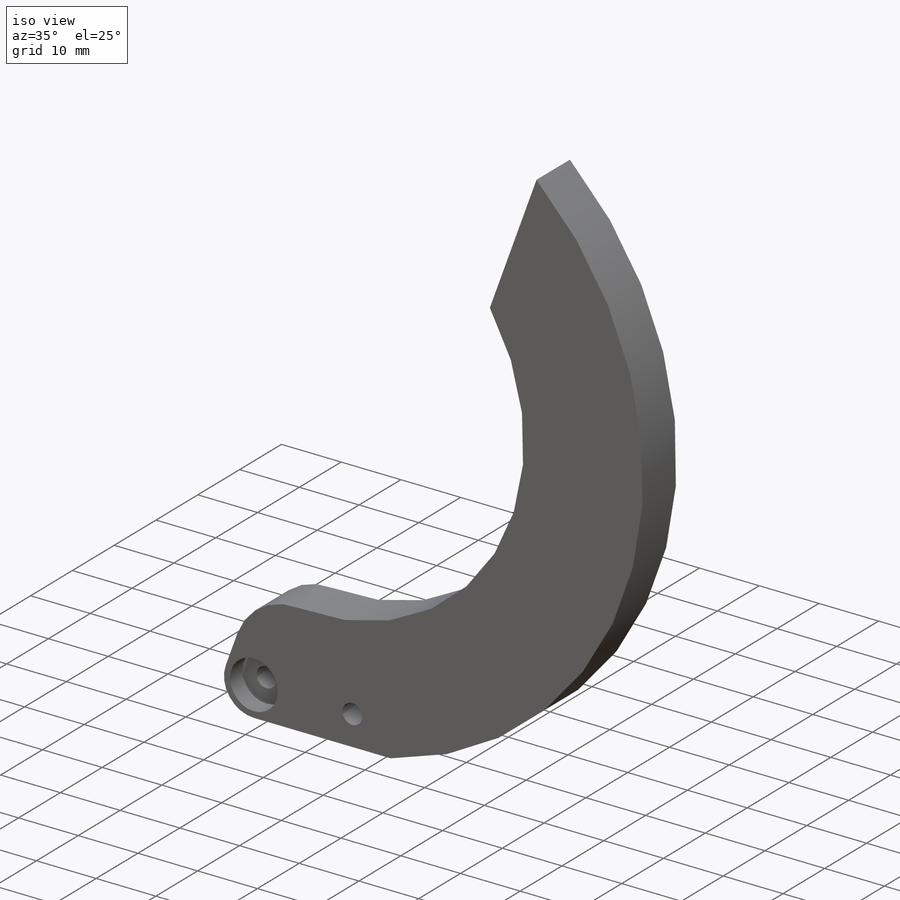
[diagram: iso view]
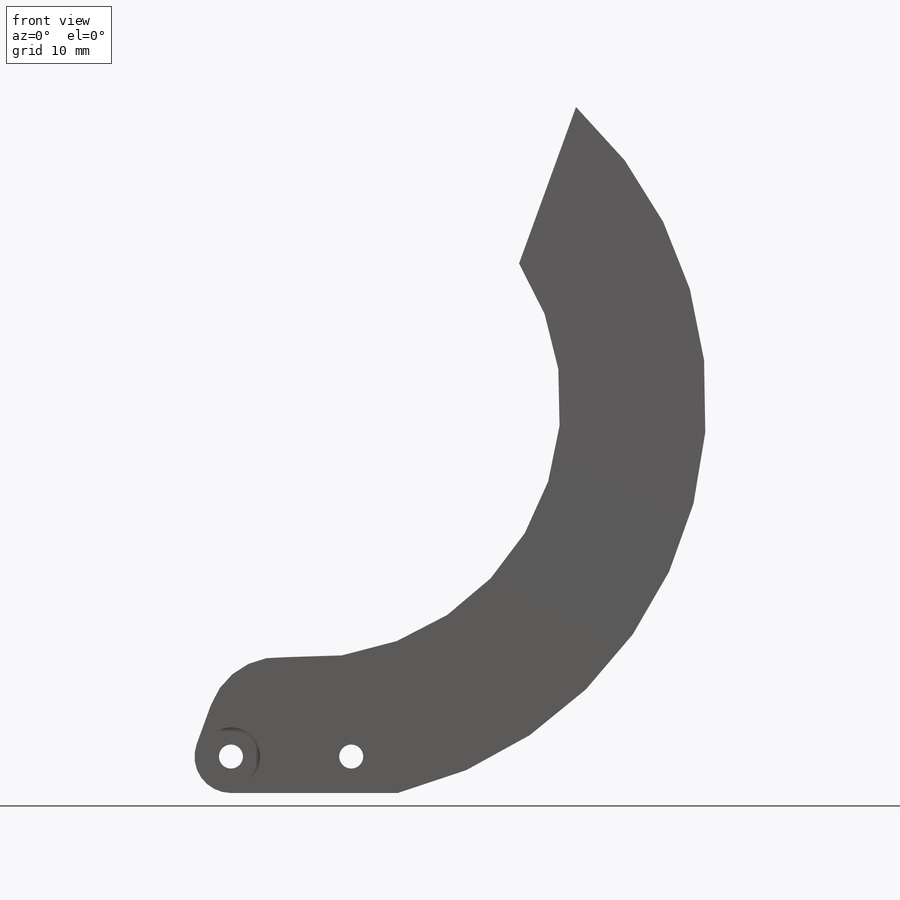
[diagram: front view]
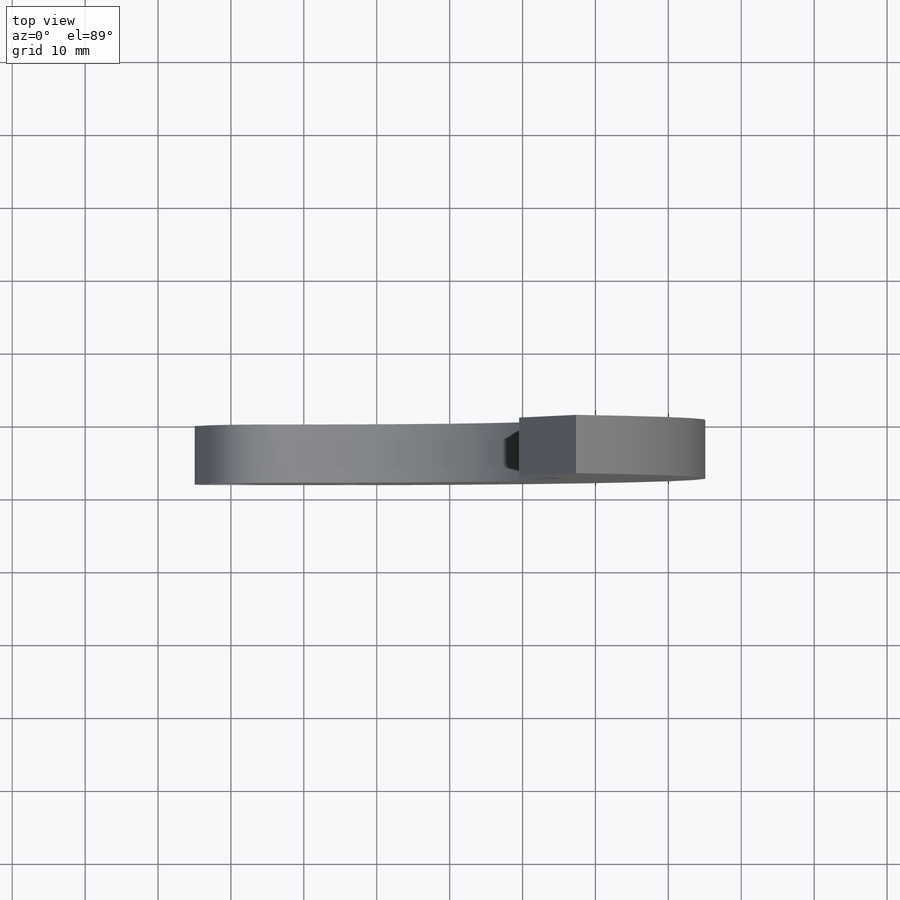
[diagram: top view]
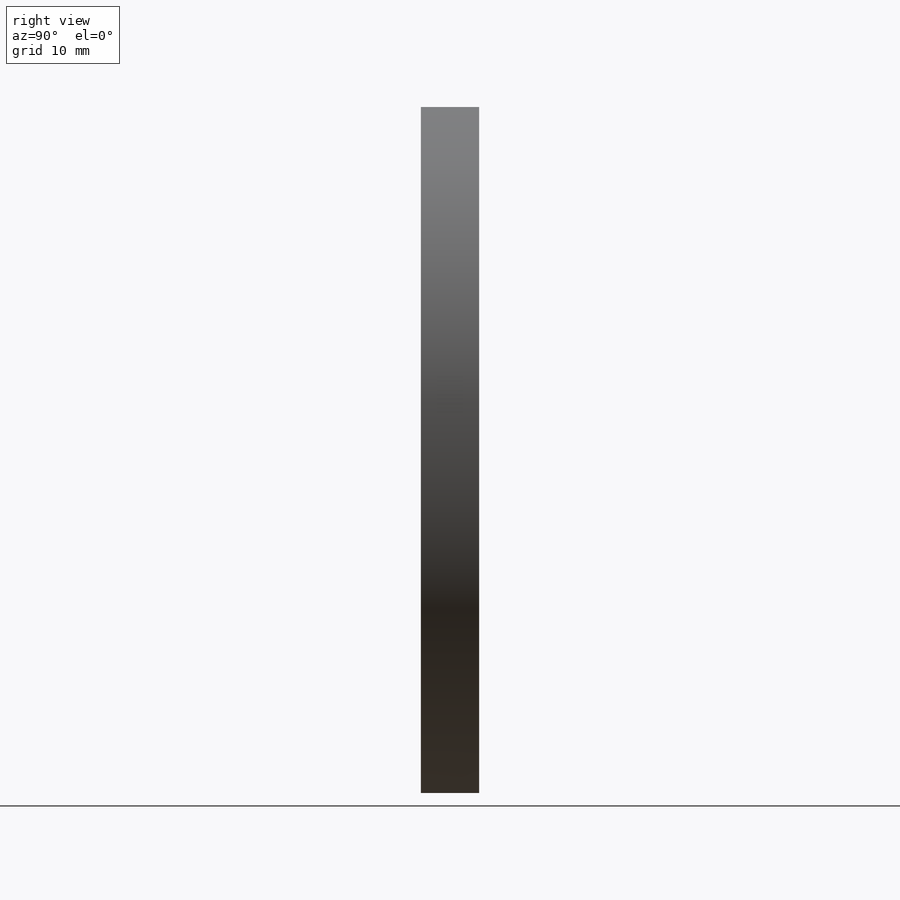
[diagram: right view]
SOLIDWORKS PART (.sldprt)
format: sldprt  version: not decoded by parser v0  size: 169,472 bytes
history: native  units: mm
features: plane x3, sketch x2, material x1, extrude x1, fillet x1, cut_extrude x1 (+10 scaffold rows collapsed)
feature tree (19):
  scaffold x10  (default folders/planes/origin — collapsed)
  material  "材質 <未指定>"
  plane  "前基準面"
  plane  "上基準面"
  plane  "右基準面"
  sketch  "草圖1"  dims[c1.D2=35.0mm c1.D6=3.3mm c1.D7=5.0mm c1.D8=60.0mm c1.D4=3.3mm c1.D5=50.0mm c1.D9=55.0mm c1.D1=45.0mm c1.D3=2.0mm c2.D4=~46.338453mm c3.D4=25.0deg c3.D1=45.0mm c3.D5=6.0mm c4.D4=~13.792224mm c4.D3=16.5mm c5.D4=5.0mm c5.D1=~35.354302mm c6.D1=70.0deg c6.D5=5.0mm c6.D9=50.0mm c6.D10=42.0mm c7.D5=~45.42414mm c7.D8=~49.379205mm c8.D5=~1.995072mm c8.D8=20.0mm]
  extrude  "填料-伸長1"  Depth=8mm
  fillet  "圓角1"  Radius=10mm
  sketch  "草圖2"  dims[D1=8.0mm]
  cut_extrude  "除料-伸長1"  Depth=3mm
decode coverage: 5 of 5 modeling features carry decoded parameters
note: ~ marks probable driven/reference dimensions
note: suppression state not decoded; provenance and decode notes live in map.json
